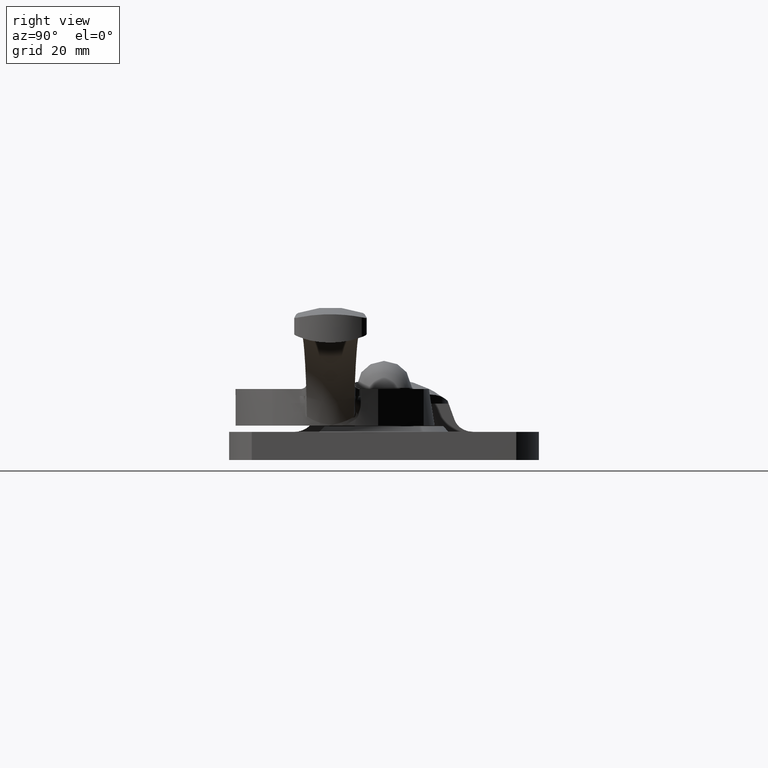
[diagram: clean part render]
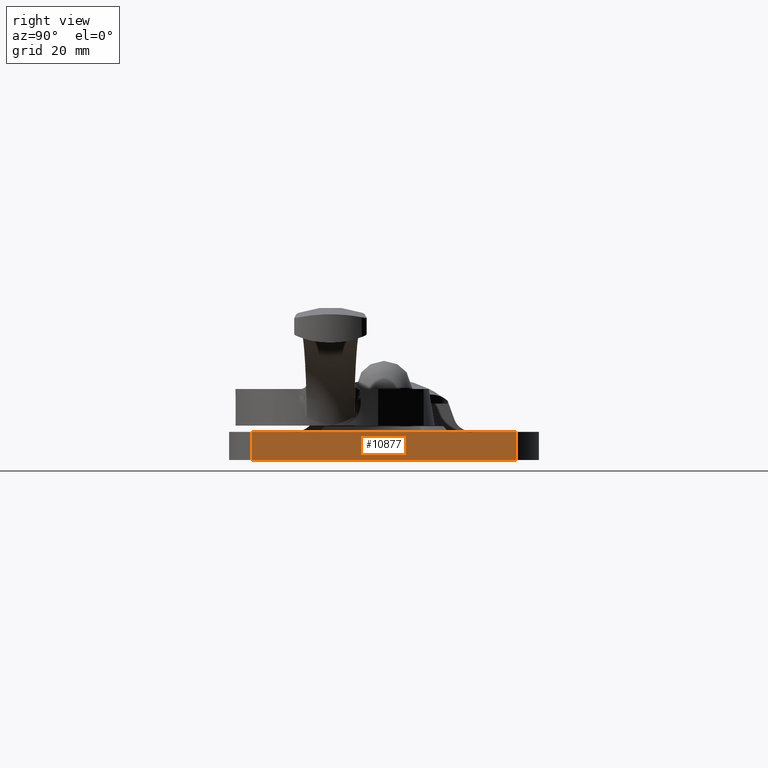
[diagram: same view with one face highlighted and labeled with its STEP entity id]
A machine part, right view. The second image highlights one B-rep face of the part: STEP entity #10877.
In plain terms, the highlighted face is a freeform B-spline surface patch.
Its self-contained STEP definition (entity closure, byte-faithful):
#10730=CARTESIAN_POINT('',(-15.0,23.480762113533149,0.0));
#10731=VERTEX_POINT('',#10730);
#10747=CARTESIAN_POINT('',(-15.0,23.480762113533149,5.0));
#10748=VERTEX_POINT('',#10747);
#10749=CARTESIAN_POINT('',(-15.0,23.480762113533149,5.0));
#10750=CARTESIAN_POINT('',(-15.0,23.480762113533149,0.0));
#10751=QUASI_UNIFORM_CURVE('',1,(#10749,#10750),.UNSPECIFIED.,.F.,.U.);
#10752=EDGE_CURVE('',#10748,#10731,#10751,.T.);
#10819=CARTESIAN_POINT('',(-15.0,-23.480762113533199,0.0));
#10820=VERTEX_POINT('',#10819);
#10835=CARTESIAN_POINT('',(-15.0,-23.480762113533199,5.0));
#10836=VERTEX_POINT('',#10835);
#10850=CARTESIAN_POINT('',(-15.0,-23.480762113533199,5.0));
#10851=CARTESIAN_POINT('',(-15.0,-23.480762113533199,0.0));
#10852=QUASI_UNIFORM_CURVE('',1,(#10850,#10851),.UNSPECIFIED.,.F.,.U.);
#10853=EDGE_CURVE('',#10836,#10820,#10852,.T.);
#10858=CARTESIAN_POINT('',(-15.0,-25.826490598495809,5.249749990309030));
#10859=CARTESIAN_POINT('',(-15.0,-25.826490598495809,-0.249750124419481));
#10860=CARTESIAN_POINT('',(-15.0,25.826491438233251,5.249749990309030));
#10861=CARTESIAN_POINT('',(-15.0,25.826491438233251,-0.249750124419481));
#10862=B_SPLINE_SURFACE_WITH_KNOTS('',1,1,((#10858,#10860),(#10859,#10861)),.UNSPECIFIED.,.F.,.F.,.U.,(2,2),(2,2),(0.0,5.499500114728511),(0.0,51.652982036729057),.UNSPECIFIED.);
#10863=CARTESIAN_POINT('',(-15.0,23.480762113533149,0.0));
#10864=CARTESIAN_POINT('',(-15.0,-23.480762113533199,0.0));
#10865=QUASI_UNIFORM_CURVE('',1,(#10863,#10864),.UNSPECIFIED.,.F.,.U.);
#10866=EDGE_CURVE('',#10731,#10820,#10865,.T.);
#10867=ORIENTED_EDGE('',*,*,#10866,.T.);
#10868=ORIENTED_EDGE('',*,*,#10853,.F.);
#10869=CARTESIAN_POINT('',(-15.0,23.480762113533149,5.0));
#10870=CARTESIAN_POINT('',(-15.0,-23.480762113533199,5.0));
#10871=QUASI_UNIFORM_CURVE('',1,(#10869,#10870),.UNSPECIFIED.,.F.,.U.);
#10872=EDGE_CURVE('',#10748,#10836,#10871,.T.);
#10873=ORIENTED_EDGE('',*,*,#10872,.F.);
#10874=ORIENTED_EDGE('',*,*,#10752,.T.);
#10875=EDGE_LOOP('',(#10867,#10868,#10873,#10874));
#10876=FACE_OUTER_BOUND('',#10875,.T.);
#10877=ADVANCED_FACE('',(#10876),#10862,.F.);